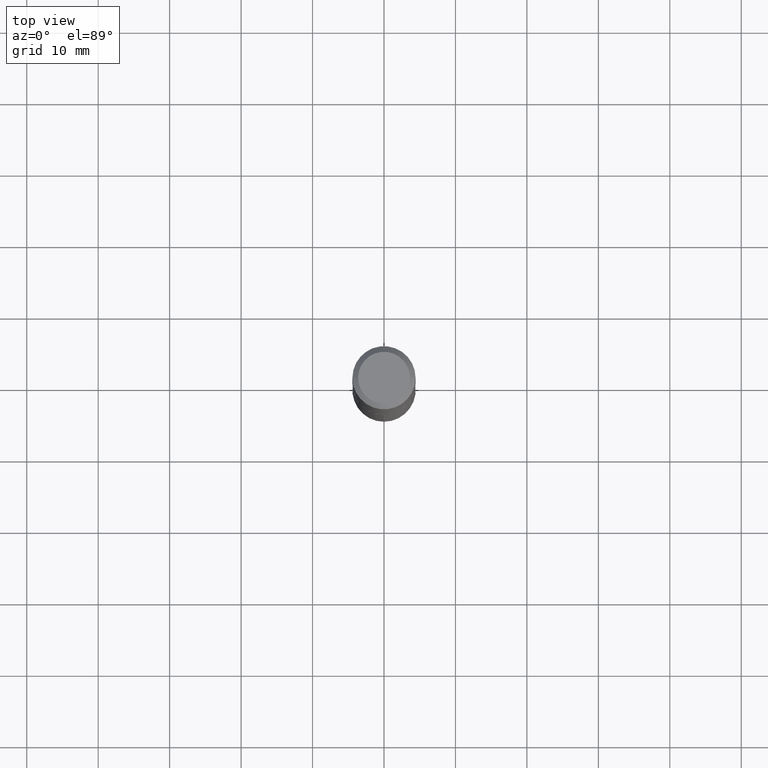
[diagram: clean part render]
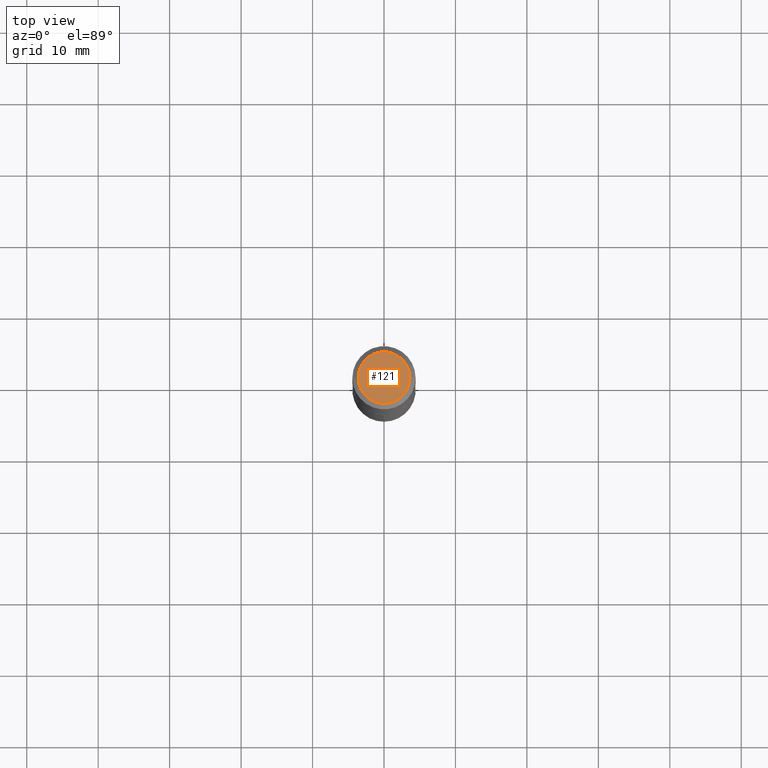
[diagram: same view with one face highlighted and labeled with its STEP entity id]
A machine part, top view. The second image highlights one B-rep face of the part: STEP entity #121.
In plain terms, the highlighted planar face has unit normal (0, -0, -1).
Its self-contained STEP definition (entity closure, byte-faithful):
#14 = DIRECTION ( 'NONE',  ( -2.445468806185136597E-29, 3.491481338843145583E-15, 1.000000000000000000 ) ) ;
#26 = CIRCLE ( 'NONE', #136, 0.1427499999999999603 ) ;
#121 = ADVANCED_FACE ( 'NONE', ( #323 ), #142, .F. ) ;
#123 = CARTESIAN_POINT ( 'NONE',  ( 0.1427499999999999603, -1.141085766316490663E-15, 2.571758278284192552E-19 ) ) ;
#136 = AXIS2_PLACEMENT_3D ( 'NONE', #375, #14, #269 ) ;
#142 = PLANE ( 'NONE',  #240 ) ;
#157 = ORIENTED_EDGE ( 'NONE', *, *, #346, .T. ) ;
#159 = EDGE_CURVE ( 'NONE', #275, #243, #26, .T. ) ;
#195 = EDGE_LOOP ( 'NONE', ( #157, #222 ) ) ;
#212 = AXIS2_PLACEMENT_3D ( 'NONE', #367, #287, #220 ) ;
#220 = DIRECTION ( 'NONE',  ( 1.000000000000000000, -6.982962677686265922E-15, 4.876170438487578859E-29 ) ) ;
#222 = ORIENTED_EDGE ( 'NONE', *, *, #159, .T. ) ;
#240 = AXIS2_PLACEMENT_3D ( 'NONE', #351, #373, #259 ) ;
#243 = VERTEX_POINT ( 'NONE', #264 ) ;
#259 = DIRECTION ( 'NONE',  ( -1.000000000000000000, 6.982962677686265922E-15, -4.876176775795935793E-29 ) ) ;
#264 = CARTESIAN_POINT ( 'NONE',  ( -0.1427499999999999603, 1.051372318159137798E-15, 2.571758278137824765E-19 ) ) ;
#269 = DIRECTION ( 'NONE',  ( 1.000000000000000000, -6.982962677686265922E-15, 4.876170438487578859E-29 ) ) ;
#275 = VERTEX_POINT ( 'NONE', #123 ) ;
#279 = CIRCLE ( 'NONE', #212, 0.1427499999999999603 ) ;
#287 = DIRECTION ( 'NONE',  ( -2.445468806185136597E-29, 3.491481338843145583E-15, 1.000000000000000000 ) ) ;
#323 = FACE_OUTER_BOUND ( 'NONE', #195, .T. ) ;
#346 = EDGE_CURVE ( 'NONE', #243, #275, #279, .T. ) ;
#351 = CARTESIAN_POINT ( 'NONE',  ( -3.144577323204793631E-48, 4.489623018191823374E-34, 1.285879139104721198E-19 ) ) ;
#367 = CARTESIAN_POINT ( 'NONE',  ( -6.289154646409587262E-48, 8.979246036383646749E-34, 2.571758278209442396E-19 ) ) ;
#373 = DIRECTION ( 'NONE',  ( 2.438088387897960049E-29, -3.491481338843145188E-15, -1.000000000000000000 ) ) ;
#375 = CARTESIAN_POINT ( 'NONE',  ( -6.289154646409587262E-48, 8.979246036383646749E-34, 2.571758278209442396E-19 ) ) ;